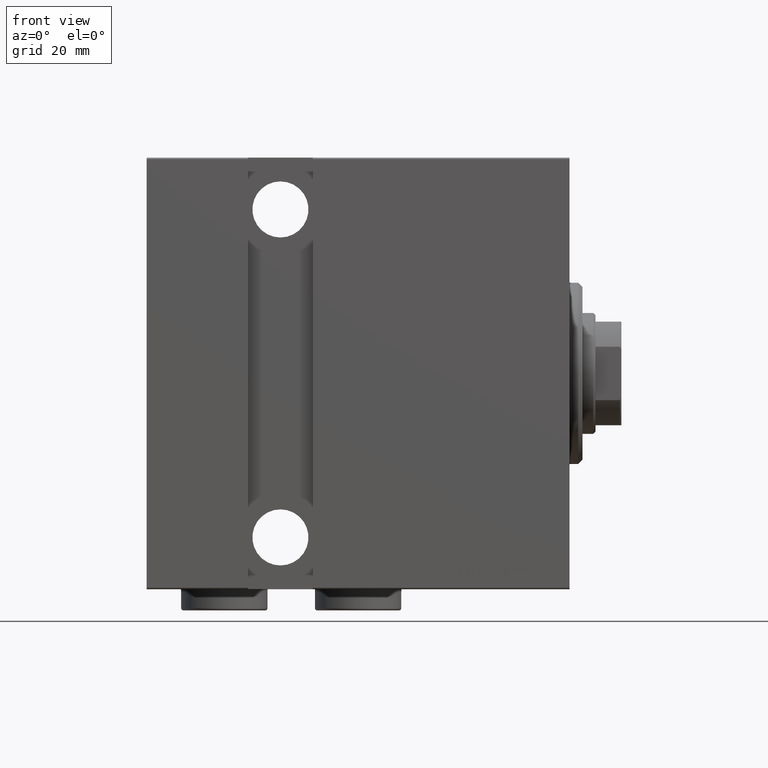
[diagram: clean part render]
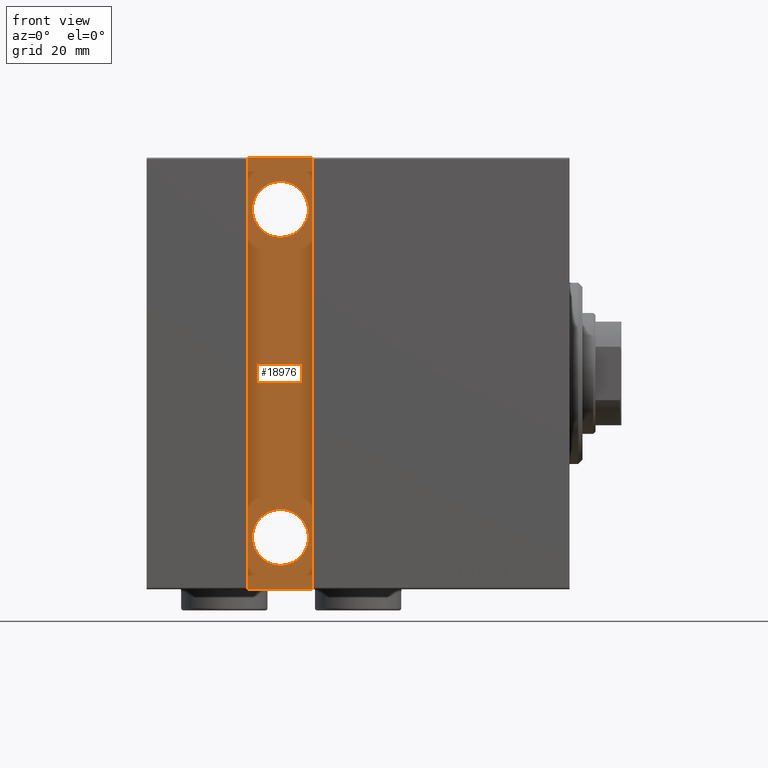
[diagram: same view with one face highlighted and labeled with its STEP entity id]
A machine part, front view. The second image highlights one B-rep face of the part: STEP entity #18976.
In plain terms, the highlighted planar face has unit normal (0, 1, 0).
Its self-contained STEP definition (entity closure, byte-faithful):
#116 = VERTEX_POINT ( 'NONE', #37463 ) ;
#158 = FACE_OUTER_BOUND ( 'NONE', #44355, .T. ) ;
#1182 = EDGE_CURVE ( 'NONE', #28025, #39921, #30250, .T. ) ;
#2238 = LINE ( 'NONE', #40572, #37678 ) ;
#2334 = ORIENTED_EDGE ( 'NONE', *, *, #39021, .T. ) ;
#3336 = PLANE ( 'NONE',  #9637 ) ;
#3385 = EDGE_CURVE ( 'NONE', #25029, #18128, #12381, .T. ) ;
#3578 = EDGE_CURVE ( 'NONE', #18128, #27734, #42992, .T. ) ;
#3610 = CIRCLE ( 'NONE', #11577, 6.499999999999999112 ) ;
#4162 = VERTEX_POINT ( 'NONE', #25876 ) ;
#4575 = ORIENTED_EDGE ( 'NONE', *, *, #1182, .T. ) ;
#5793 = ORIENTED_EDGE ( 'NONE', *, *, #3385, .T. ) ;
#5800 = CARTESIAN_POINT ( 'NONE',  ( 74.50000000000002842, 32.49999999999999289, 50.00000000000001421 ) ) ;
#7042 = AXIS2_PLACEMENT_3D ( 'NONE', #28543, #20827, #31502 ) ;
#9508 = EDGE_CURVE ( 'NONE', #27734, #15428, #2238, .T. ) ;
#9637 = AXIS2_PLACEMENT_3D ( 'NONE', #24428, #10577, #38270 ) ;
#10577 = DIRECTION ( 'NONE',  ( 0.000000000000000000, -1.000000000000000000, 0.000000000000000000 ) ) ;
#11418 = EDGE_CURVE ( 'NONE', #39921, #28025, #13798, .T. ) ;
#11577 = AXIS2_PLACEMENT_3D ( 'NONE', #21797, #19053, #18608 ) ;
#12187 = VECTOR ( 'NONE', #15513, 1000.000000000000000 ) ;
#12381 = LINE ( 'NONE', #5800, #33939 ) ;
#13798 = CIRCLE ( 'NONE', #16704, 6.499999999999999112 ) ;
#13889 = ORIENTED_EDGE ( 'NONE', *, *, #22599, .T. ) ;
#14594 = CARTESIAN_POINT ( 'NONE',  ( 67.00000000000001421, 32.49999999999999289, -31.50000000000000000 ) ) ;
#14595 = CARTESIAN_POINT ( 'NONE',  ( 74.50000000000002842, 32.49999999999999289, 50.00000000000001421 ) ) ;
#14892 = DIRECTION ( 'NONE',  ( 1.387778780781445429E-16, 0.000000000000000000, 1.000000000000000000 ) ) ;
#15428 = VERTEX_POINT ( 'NONE', #23688 ) ;
#15513 = DIRECTION ( 'NONE',  ( -1.387778780781445429E-16, -0.000000000000000000, -1.000000000000000000 ) ) ;
#16704 = AXIS2_PLACEMENT_3D ( 'NONE', #27584, #34395, #20764 ) ;
#16839 = ORIENTED_EDGE ( 'NONE', *, *, #11418, .T. ) ;
#18128 = VERTEX_POINT ( 'NONE', #14595 ) ;
#18608 = DIRECTION ( 'NONE',  ( 0.000000000000000000, 0.000000000000000000, -1.000000000000000000 ) ) ;
#18949 = ORIENTED_EDGE ( 'NONE', *, *, #20485, .T. ) ;
#18976 = ADVANCED_FACE ( 'NONE', ( #34870, #41677, #158 ), #3336, .F. ) ;
#19053 = DIRECTION ( 'NONE',  ( 0.000000000000000000, -1.000000000000000000, 0.000000000000000000 ) ) ;
#20485 = EDGE_CURVE ( 'NONE', #116, #4162, #3610, .T. ) ;
#20764 = DIRECTION ( 'NONE',  ( 0.000000000000000000, 0.000000000000000000, -1.000000000000000000 ) ) ;
#20827 = DIRECTION ( 'NONE',  ( 0.000000000000000000, -1.000000000000000000, 0.000000000000000000 ) ) ;
#21709 = CARTESIAN_POINT ( 'NONE',  ( 59.50000000000000000, 32.49999999999999289, -50.00000000000000000 ) ) ;
#21797 = CARTESIAN_POINT ( 'NONE',  ( 67.00000000000001421, 32.49999999999999289, 38.00000000000000000 ) ) ;
#22599 = EDGE_CURVE ( 'NONE', #15428, #25029, #33049, .T. ) ;
#23562 = AXIS2_PLACEMENT_3D ( 'NONE', #28407, #24776, #25222 ) ;
#23688 = CARTESIAN_POINT ( 'NONE',  ( 59.50000000000000000, 32.49999999999999289, -50.00000000000000000 ) ) ;
#24428 = CARTESIAN_POINT ( 'NONE',  ( 0.000000000000000000, 32.49999999999999289, 0.000000000000000000 ) ) ;
#24776 = DIRECTION ( 'NONE',  ( 0.000000000000000000, -1.000000000000000000, 0.000000000000000000 ) ) ;
#25029 = VERTEX_POINT ( 'NONE', #37759 ) ;
#25222 = DIRECTION ( 'NONE',  ( 0.000000000000000000, 0.000000000000000000, -1.000000000000000000 ) ) ;
#25876 = CARTESIAN_POINT ( 'NONE',  ( 67.00000000000001421, 32.49999999999999289, 44.50000000000000000 ) ) ;
#26161 = VECTOR ( 'NONE', #14892, 1000.000000000000000 ) ;
#27584 = CARTESIAN_POINT ( 'NONE',  ( 67.00000000000001421, 32.49999999999999289, -38.00000000000000000 ) ) ;
#27734 = VERTEX_POINT ( 'NONE', #28499 ) ;
#28025 = VERTEX_POINT ( 'NONE', #14594 ) ;
#28208 = ORIENTED_EDGE ( 'NONE', *, *, #3578, .T. ) ;
#28407 = CARTESIAN_POINT ( 'NONE',  ( 67.00000000000001421, 32.49999999999999289, 38.00000000000000000 ) ) ;
#28499 = CARTESIAN_POINT ( 'NONE',  ( 74.50000000000002842, 32.49999999999999289, -50.00000000000000000 ) ) ;
#28543 = CARTESIAN_POINT ( 'NONE',  ( 67.00000000000001421, 32.49999999999999289, -38.00000000000000000 ) ) ;
#29076 = CARTESIAN_POINT ( 'NONE',  ( 67.00000000000001421, 32.49999999999999289, -44.50000000000000000 ) ) ;
#29829 = CARTESIAN_POINT ( 'NONE',  ( 74.50000000000001421, 32.49999999999999289, -50.00000000000000000 ) ) ;
#30250 = CIRCLE ( 'NONE', #7042, 6.499999999999999112 ) ;
#31502 = DIRECTION ( 'NONE',  ( 0.000000000000000000, 0.000000000000000000, -1.000000000000000000 ) ) ;
#33049 = LINE ( 'NONE', #21709, #26161 ) ;
#33497 = DIRECTION ( 'NONE',  ( 1.000000000000000000, -0.000000000000000000, -0.000000000000000000 ) ) ;
#33939 = VECTOR ( 'NONE', #33497, 1000.000000000000000 ) ;
#34395 = DIRECTION ( 'NONE',  ( 0.000000000000000000, -1.000000000000000000, 0.000000000000000000 ) ) ;
#34870 = FACE_BOUND ( 'NONE', #41841, .T. ) ;
#36494 = DIRECTION ( 'NONE',  ( -1.000000000000000000, 0.000000000000000000, 0.000000000000000000 ) ) ;
#37463 = CARTESIAN_POINT ( 'NONE',  ( 67.00000000000001421, 32.49999999999999289, 31.50000000000000000 ) ) ;
#37678 = VECTOR ( 'NONE', #36494, 1000.000000000000000 ) ;
#37759 = CARTESIAN_POINT ( 'NONE',  ( 59.50000000000001421, 32.49999999999999289, 50.00000000000001421 ) ) ;
#38270 = DIRECTION ( 'NONE',  ( 0.000000000000000000, -0.000000000000000000, -1.000000000000000000 ) ) ;
#39021 = EDGE_CURVE ( 'NONE', #4162, #116, #43118, .T. ) ;
#39921 = VERTEX_POINT ( 'NONE', #29076 ) ;
#39959 = ORIENTED_EDGE ( 'NONE', *, *, #9508, .T. ) ;
#40302 = EDGE_LOOP ( 'NONE', ( #4575, #16839 ) ) ;
#40572 = CARTESIAN_POINT ( 'NONE',  ( 74.50000000000001421, 32.49999999999999289, -50.00000000000000000 ) ) ;
#41677 = FACE_BOUND ( 'NONE', #40302, .T. ) ;
#41841 = EDGE_LOOP ( 'NONE', ( #2334, #18949 ) ) ;
#42992 = LINE ( 'NONE', #29829, #12187 ) ;
#43118 = CIRCLE ( 'NONE', #23562, 6.499999999999999112 ) ;
#44355 = EDGE_LOOP ( 'NONE', ( #13889, #5793, #28208, #39959 ) ) ;